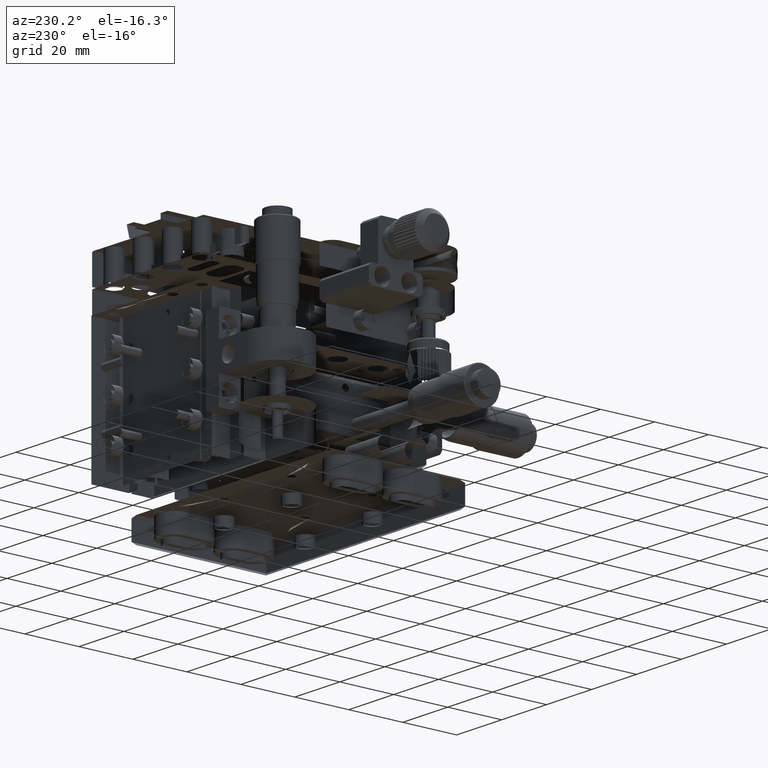
[diagram: clean part render]
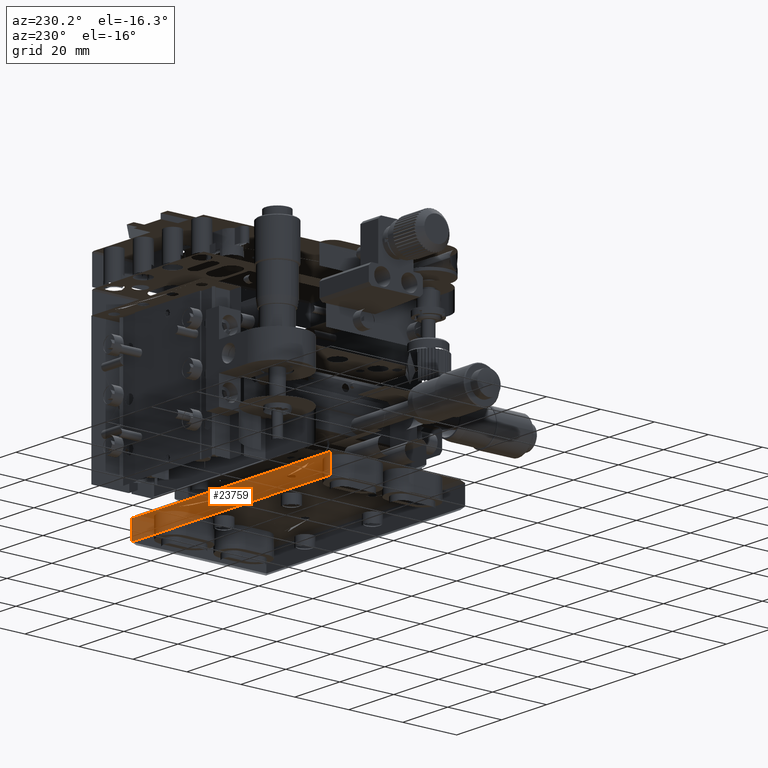
[diagram: same view with one face highlighted and labeled with its STEP entity id]
A machine part, auxiliary view. The second image highlights one B-rep face of the part: STEP entity #23759.
In plain terms, the highlighted face is a freeform B-spline surface patch.
Its self-contained STEP definition (entity closure, byte-faithful):
#1982 = CARTESIAN_POINT ( 'NONE',  ( -48.65637179039159577, 27.40884961642790074, -3.500000000000000000 ) ) ;
#4138 = CARTESIAN_POINT ( 'NONE',  ( 39.74362820960845255, 27.40884961642790074, 3.500000000000000000 ) ) ;
#4801 = B_SPLINE_SURFACE_WITH_KNOTS ( 'NONE', 1, 1, ( 
 ( #43429, #18762 ),
 ( #58757, #63280 ) ),
 .UNSPECIFIED., .F., .F., .F.,
 ( 2, 2 ),
 ( 2, 2 ),
 ( 0.000000000000000000, 1.000000000000000000 ),
 ( 0.000000000000000000, 1.000000000000000000 ),
 .UNSPECIFIED. ) ;
#5472 = CARTESIAN_POINT ( 'NONE',  ( 39.74362820960845255, 27.40884961642790074, 3.500000000000000000 ) ) ;
#6442 = CARTESIAN_POINT ( 'NONE',  ( 39.74362820960839571, 27.40884961642790074, -3.500000000000000000 ) ) ;
#6553 = ORIENTED_EDGE ( 'NONE', *, *, #57265, .T. ) ;
#7620 = EDGE_LOOP ( 'NONE', ( #41446, #41637, #6553, #22341 ) ) ;
#10539 = B_SPLINE_CURVE_WITH_KNOTS ( 'NONE', 1,
 ( #45719, #25568 ),
 .UNSPECIFIED., .F., .F.,
 ( 2, 2 ),
 ( 0.000000000000000000, 1.000000000000000000 ),
 .UNSPECIFIED. ) ;
#13195 = CARTESIAN_POINT ( 'NONE',  ( 39.74362820960845255, 27.40884961642790074, 3.500000000000000000 ) ) ;
#14145 = EDGE_CURVE ( 'NONE', #22589, #40872, #10539, .T. ) ;
#18762 = CARTESIAN_POINT ( 'NONE',  ( 39.74362820960839571, 27.40884961642790074, -3.500000000000000000 ) ) ;
#19423 = CARTESIAN_POINT ( 'NONE',  ( 39.74362820960839571, 27.40884961642790074, -3.500000000000000000 ) ) ;
#22341 = ORIENTED_EDGE ( 'NONE', *, *, #14145, .T. ) ;
#22589 = VERTEX_POINT ( 'NONE', #30113 ) ;
#23759 = ADVANCED_FACE ( 'NONE', ( #34349 ), #4801, .T. ) ;
#25568 = CARTESIAN_POINT ( 'NONE',  ( -48.65637179039159577, 27.40884961642790074, -3.500000000000000000 ) ) ;
#30113 = CARTESIAN_POINT ( 'NONE',  ( -48.65637179039159577, 27.40884961642790074, 3.500000000000000000 ) ) ;
#31615 = CARTESIAN_POINT ( 'NONE',  ( -48.65637179039159577, 27.40884961642790074, -3.500000000000000000 ) ) ;
#34349 = FACE_OUTER_BOUND ( 'NONE', #7620, .T. ) ;
#39303 = VERTEX_POINT ( 'NONE', #19423 ) ;
#40872 = VERTEX_POINT ( 'NONE', #31615 ) ;
#40955 = CARTESIAN_POINT ( 'NONE',  ( 39.74362820960839571, 27.40884961642790074, -3.500000000000000000 ) ) ;
#41446 = ORIENTED_EDGE ( 'NONE', *, *, #57769, .F. ) ;
#41637 = ORIENTED_EDGE ( 'NONE', *, *, #54874, .T. ) ;
#41686 = VERTEX_POINT ( 'NONE', #13195 ) ;
#42161 = B_SPLINE_CURVE_WITH_KNOTS ( 'NONE', 1,
 ( #4138, #43727 ),
 .UNSPECIFIED., .F., .F.,
 ( 2, 2 ),
 ( 0.000000000000000000, 1.000000000000000000 ),
 .UNSPECIFIED. ) ;
#43429 = CARTESIAN_POINT ( 'NONE',  ( 39.74362820960839571, 27.40884961642790074, 3.500000000000000000 ) ) ;
#43727 = CARTESIAN_POINT ( 'NONE',  ( -48.65637179039159577, 27.40884961642790074, 3.500000000000000000 ) ) ;
#45719 = CARTESIAN_POINT ( 'NONE',  ( -48.65637179039159577, 27.40884961642790074, 3.500000000000000000 ) ) ;
#52172 = B_SPLINE_CURVE_WITH_KNOTS ( 'NONE', 1,
 ( #40955, #1982 ),
 .UNSPECIFIED., .F., .F.,
 ( 2, 2 ),
 ( 0.000000000000000000, 1.000000000000000000 ),
 .UNSPECIFIED. ) ;
#54874 = EDGE_CURVE ( 'NONE', #39303, #41686, #58791, .T. ) ;
#57265 = EDGE_CURVE ( 'NONE', #41686, #22589, #42161, .T. ) ;
#57769 = EDGE_CURVE ( 'NONE', #39303, #40872, #52172, .T. ) ;
#58757 = CARTESIAN_POINT ( 'NONE',  ( -48.65637179039159577, 27.40884961642790074, 3.500000000000000000 ) ) ;
#58791 = B_SPLINE_CURVE_WITH_KNOTS ( 'NONE', 1,
 ( #6442, #5472 ),
 .UNSPECIFIED., .F., .F.,
 ( 2, 2 ),
 ( -1.000000000000000000, 0.000000000000000000 ),
 .UNSPECIFIED. ) ;
#63280 = CARTESIAN_POINT ( 'NONE',  ( -48.65637179039159577, 27.40884961642790074, -3.500000000000000000 ) ) ;